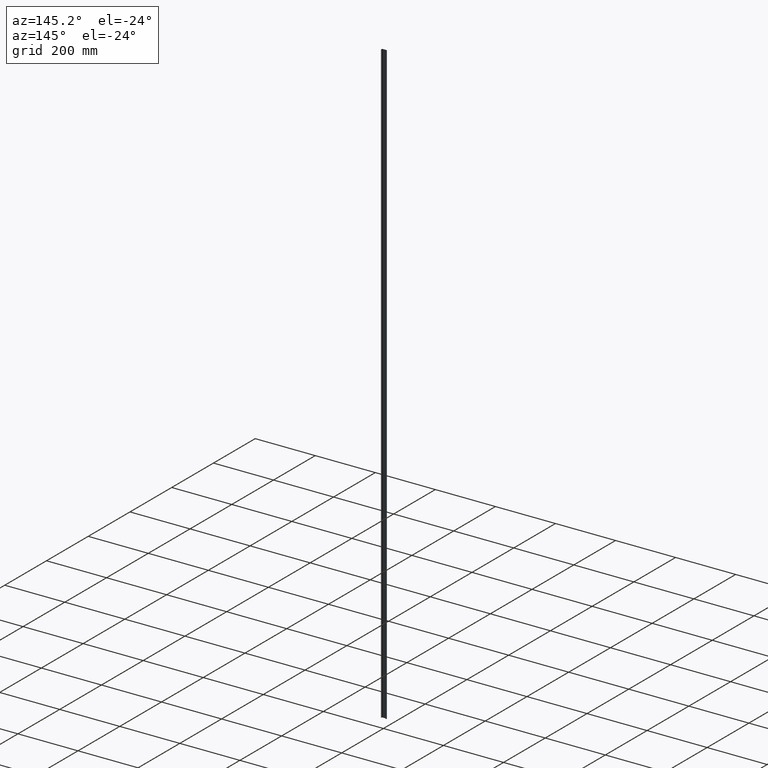
[diagram: clean part render]
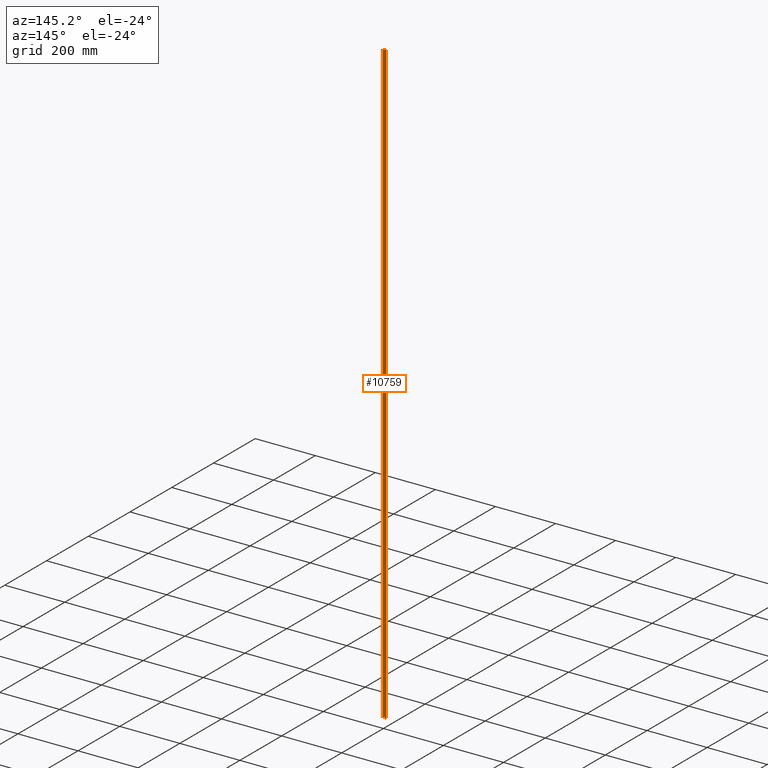
[diagram: same view with one face highlighted and labeled with its STEP entity id]
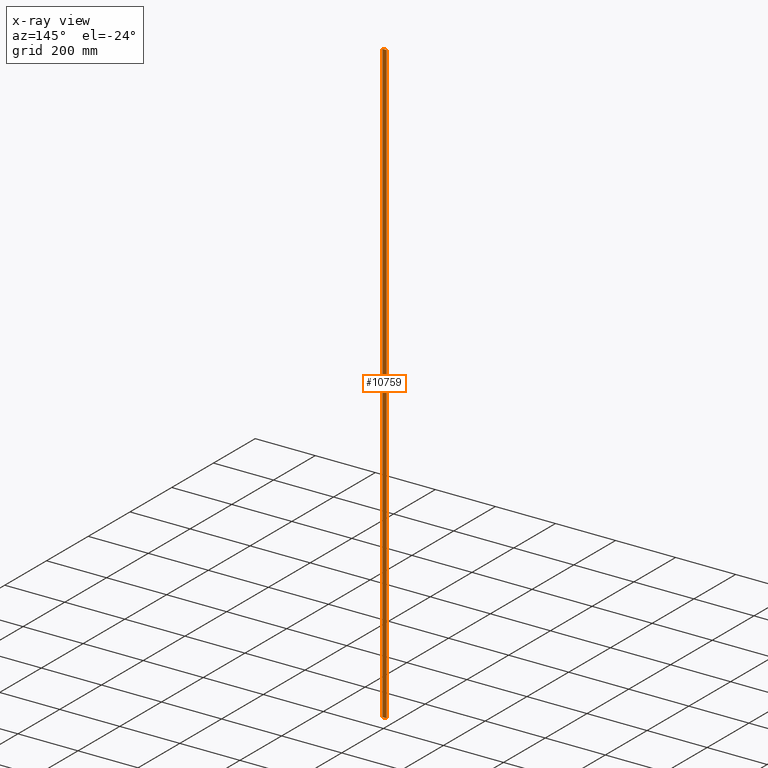
[diagram: x-ray of the same camera — body ghosted, the highlighted face saturated]
A machine part, auxiliary view. The second image highlights one B-rep face of the part: STEP entity #10759.
The next image is the same camera in x-ray: the body ghosted, the highlighted face saturated — about 0% of this face is hidden behind the body in this view.
In plain terms, the highlighted planar face has unit normal (0, -1, 0).
Its self-contained STEP definition (entity closure, byte-faithful):
#266 = CARTESIAN_POINT ( 'NONE',  ( -6.550000000000000711, 6.000000000000000000, 1000.000000000000000 ) ) ;
#275 = EDGE_CURVE ( 'NONE', #2116, #14769, #3839, .T. ) ;
#1360 = CARTESIAN_POINT ( 'NONE',  ( 6.550000000000000711, 6.000000000000000000, 1000.000000000000000 ) ) ;
#1846 = ORIENTED_EDGE ( 'NONE', *, *, #275, .F. ) ;
#2110 = CARTESIAN_POINT ( 'NONE',  ( -6.550000000000000711, 6.000000000000000000, 1000.000000000000000 ) ) ;
#2116 = VERTEX_POINT ( 'NONE', #12105 ) ;
#3462 = DIRECTION ( 'NONE',  ( -1.000000000000000000, -0.000000000000000000, -0.000000000000000000 ) ) ;
#3839 = LINE ( 'NONE', #2110, #8258 ) ;
#3908 = EDGE_CURVE ( 'NONE', #14769, #5079, #5994, .T. ) ;
#3932 = EDGE_LOOP ( 'NONE', ( #4240, #8720, #1846, #10965 ) ) ;
#4202 = LINE ( 'NONE', #1360, #13711 ) ;
#4240 = ORIENTED_EDGE ( 'NONE', *, *, #17178, .T. ) ;
#4929 = CARTESIAN_POINT ( 'NONE',  ( -6.550000000000000711, 6.000000000000000000, -1000.000000000000000 ) ) ;
#5026 = DIRECTION ( 'NONE',  ( -1.000000000000000000, -0.000000000000000000, -0.000000000000000000 ) ) ;
#5079 = VERTEX_POINT ( 'NONE', #4929 ) ;
#5696 = EDGE_CURVE ( 'NONE', #2116, #8171, #4202, .T. ) ;
#5994 = LINE ( 'NONE', #266, #9085 ) ;
#7582 = VECTOR ( 'NONE', #5026, 1000.000000000000000 ) ;
#8171 = VERTEX_POINT ( 'NONE', #9113 ) ;
#8258 = VECTOR ( 'NONE', #3462, 1000.000000000000000 ) ;
#8720 = ORIENTED_EDGE ( 'NONE', *, *, #3908, .F. ) ;
#9085 = VECTOR ( 'NONE', #18144, 1000.000000000000000 ) ;
#9113 = CARTESIAN_POINT ( 'NONE',  ( 6.550000000000000711, 6.000000000000000000, -1000.000000000000000 ) ) ;
#9567 = CARTESIAN_POINT ( 'NONE',  ( -6.550000000000000711, 6.000000000000000000, 1000.000000000000000 ) ) ;
#9851 = DIRECTION ( 'NONE',  ( -0.000000000000000000, -0.000000000000000000, -1.000000000000000000 ) ) ;
#10759 = ADVANCED_FACE ( 'NONE', ( #11354 ), #11065, .F. ) ;
#10965 = ORIENTED_EDGE ( 'NONE', *, *, #5696, .T. ) ;
#11065 = PLANE ( 'NONE',  #15039 ) ;
#11354 = FACE_OUTER_BOUND ( 'NONE', #3932, .T. ) ;
#12105 = CARTESIAN_POINT ( 'NONE',  ( 6.550000000000000711, 6.000000000000000000, 1000.000000000000000 ) ) ;
#13455 = CARTESIAN_POINT ( 'NONE',  ( -6.550000000000000711, 6.000000000000000000, 1000.000000000000000 ) ) ;
#13711 = VECTOR ( 'NONE', #9851, 1000.000000000000000 ) ;
#14769 = VERTEX_POINT ( 'NONE', #13455 ) ;
#15039 = AXIS2_PLACEMENT_3D ( 'NONE', #9567, #18050, #17922 ) ;
#17178 = EDGE_CURVE ( 'NONE', #8171, #5079, #18209, .T. ) ;
#17627 = CARTESIAN_POINT ( 'NONE',  ( -6.550000000000000711, 6.000000000000000000, -1000.000000000000000 ) ) ;
#17922 = DIRECTION ( 'NONE',  ( 0.000000000000000000, -0.000000000000000000, -1.000000000000000000 ) ) ;
#18050 = DIRECTION ( 'NONE',  ( 0.000000000000000000, -1.000000000000000000, 0.000000000000000000 ) ) ;
#18144 = DIRECTION ( 'NONE',  ( -0.000000000000000000, -0.000000000000000000, -1.000000000000000000 ) ) ;
#18209 = LINE ( 'NONE', #17627, #7582 ) ;